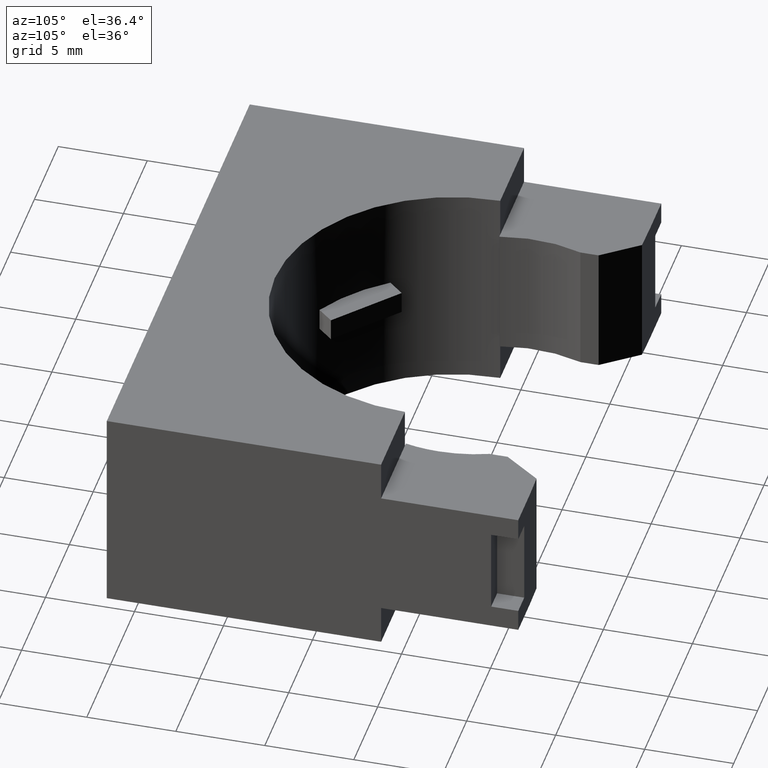
[diagram: clean part render]
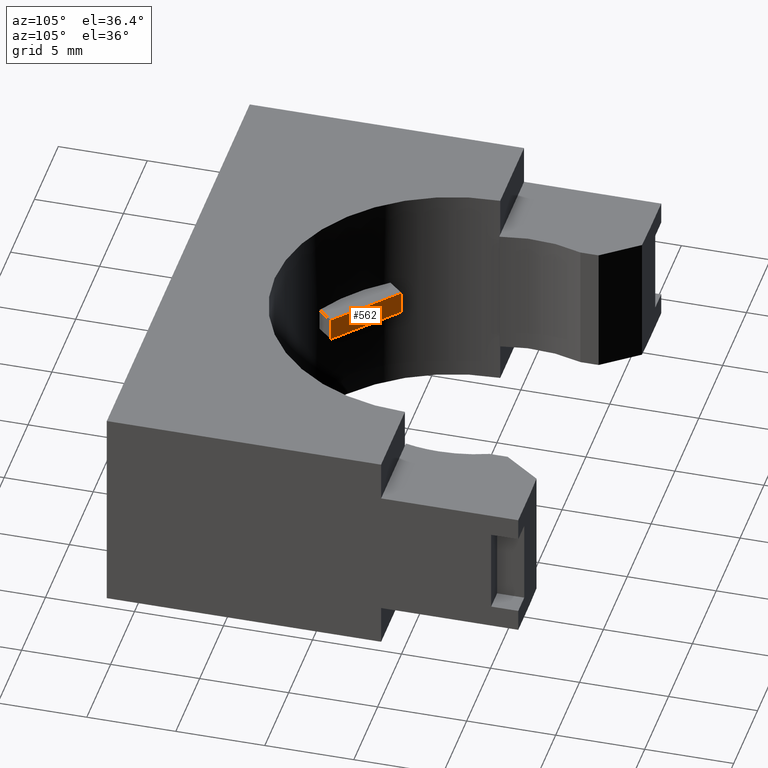
[diagram: same view with one face highlighted and labeled with its STEP entity id]
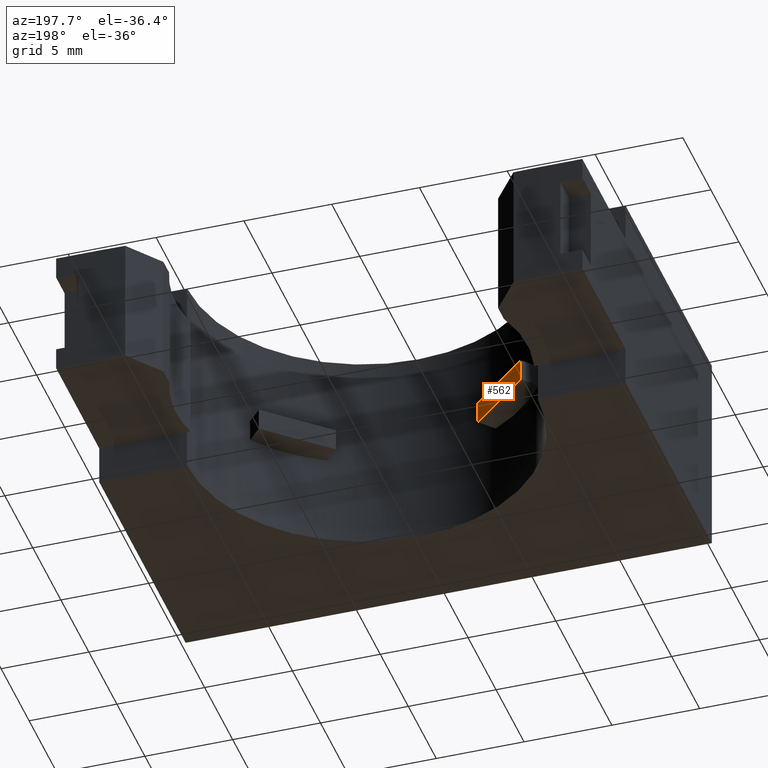
[diagram: same view with one face highlighted and labeled with its STEP entity id]
A machine part, auxiliary view. The second image highlights one B-rep face of the part: STEP entity #562.
A second angle (auxiliary view) of the same face is appended — the face is thin or edge-on in the first view.
In plain terms, the highlighted planar face has unit normal (-0.6691, -0.7431, -0).
Its self-contained STEP definition (entity closure, byte-faithful):
#542 = VERTEX_POINT ( 'NONE', #1358 ) ;
#547 = EDGE_CURVE ( 'NONE', #549, #542, #1290, .T. ) ;
#549 = VERTEX_POINT ( 'NONE', #1286 ) ;
#553 = EDGE_CURVE ( 'NONE', #568, #549, #1275, .T. ) ;
#554 = ORIENTED_EDGE ( 'NONE', *, *, #567, .T. ) ;
#558 = EDGE_LOOP ( 'NONE', ( #563, #565, #566, #554 ) ) ;
#562 = ADVANCED_FACE ( 'NONE', ( #1420 ), #1424, .F. ) ;
#563 = ORIENTED_EDGE ( 'NONE', *, *, #564, .T. ) ;
#564 = EDGE_CURVE ( 'NONE', #576, #542, #1418, .T. ) ;
#565 = ORIENTED_EDGE ( 'NONE', *, *, #547, .F. ) ;
#566 = ORIENTED_EDGE ( 'NONE', *, *, #553, .F. ) ;
#567 = EDGE_CURVE ( 'NONE', #568, #576, #1411, .T. ) ;
#568 = VERTEX_POINT ( 'NONE', #1407 ) ;
#576 = VERTEX_POINT ( 'NONE', #1349 ) ;
#1275 = LINE ( 'NONE', #1436, #1435 ) ;
#1286 = CARTESIAN_POINT ( 'NONE',  ( -0.1593527062269803600, -0.1601266819099529400, 0.2099999999999999900 ) ) ;
#1287 = DIRECTION ( 'NONE',  ( -0.0000000000000000000, -8.326672684688672800E-017, 1.000000000000000000 ) ) ;
#1288 = VECTOR ( 'NONE', #1287, 39.37007874015748100 ) ;
#1289 = CARTESIAN_POINT ( 'NONE',  ( -0.1593527062269803600, -0.1601266819099529400, 0.2099999999999999900 ) ) ;
#1290 = LINE ( 'NONE', #1289, #1288 ) ;
#1349 = CARTESIAN_POINT ( 'NONE',  ( -0.2934284184901821400, -0.03940436834602936000, 0.2600000000000000100 ) ) ;
#1358 = CARTESIAN_POINT ( 'NONE',  ( -0.1593527062269803600, -0.1601266819099529400, 0.2600000000000000100 ) ) ;
#1407 = CARTESIAN_POINT ( 'NONE',  ( -0.2934284184901821400, -0.03940436834602936000, 0.2099999999999999900 ) ) ;
#1408 = DIRECTION ( 'NONE',  ( -0.0000000000000000000, -8.326672684688672800E-017, 1.000000000000000000 ) ) ;
#1409 = VECTOR ( 'NONE', #1408, 39.37007874015748100 ) ;
#1410 = CARTESIAN_POINT ( 'NONE',  ( -0.2934284184901821400, -0.03940436834602936000, 0.2099999999999999900 ) ) ;
#1411 = LINE ( 'NONE', #1410, #1409 ) ;
#1412 = DIRECTION ( 'NONE',  ( 0.7431448254773303000, -0.6691306063589292900, -0.0000000000000000000 ) ) ;
#1413 = VECTOR ( 'NONE', #1412, 39.37007874015748100 ) ;
#1414 = CARTESIAN_POINT ( 'NONE',  ( -0.1593527062269803600, -0.1601266819099529400, 0.2600000000000000100 ) ) ;
#1415 = DIRECTION ( 'NONE',  ( 0.7431448254773301800, -0.6691306063589292900, 0.0000000000000000000 ) ) ;
#1416 = DIRECTION ( 'NONE',  ( -0.6691306063589294000, -0.7431448254773303000, -6.187923719069818600E-017 ) ) ;
#1417 = CARTESIAN_POINT ( 'NONE',  ( -0.1593527062269803600, -0.1601266819099529400, 0.2099999999999999900 ) ) ;
#1418 = LINE ( 'NONE', #1414, #1413 ) ;
#1419 = AXIS2_PLACEMENT_3D ( 'NONE', #1417, #1416, #1415 ) ;
#1420 = FACE_OUTER_BOUND ( 'NONE', #558, .T. ) ;
#1424 = PLANE ( 'NONE',  #1419 ) ;
#1434 = DIRECTION ( 'NONE',  ( 0.7431448254773303000, -0.6691306063589292900, -0.0000000000000000000 ) ) ;
#1435 = VECTOR ( 'NONE', #1434, 39.37007874015748100 ) ;
#1436 = CARTESIAN_POINT ( 'NONE',  ( -0.1593527062269803600, -0.1601266819099529400, 0.2099999999999999900 ) ) ;